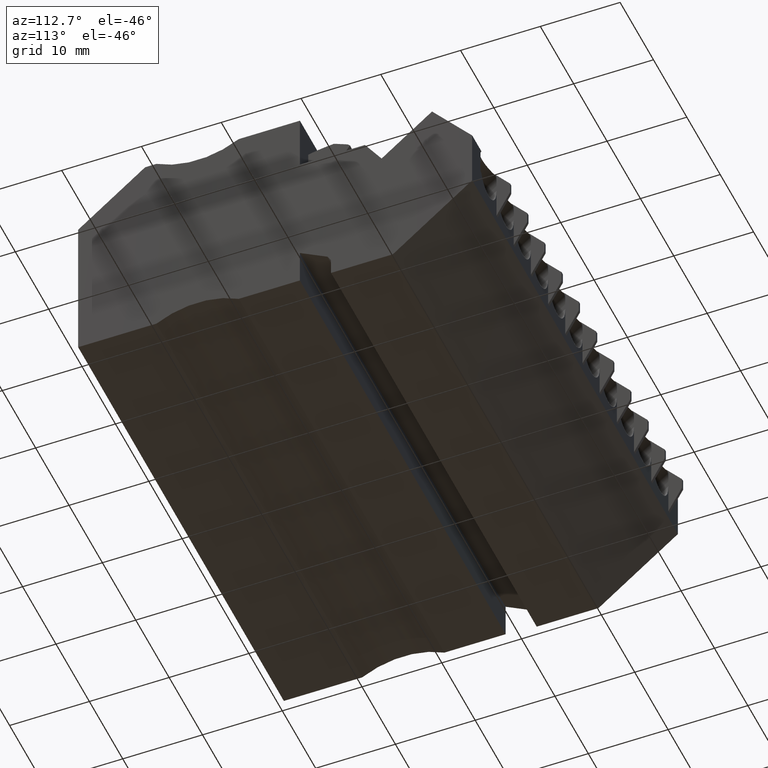
[diagram: clean part render]
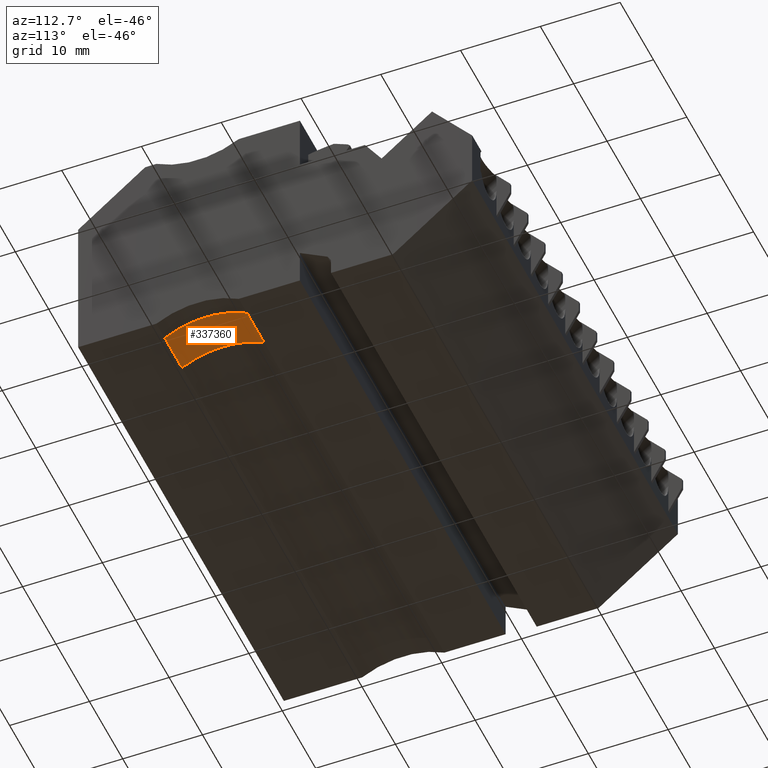
[diagram: same view with one face highlighted and labeled with its STEP entity id]
A machine part, auxiliary view. The second image highlights one B-rep face of the part: STEP entity #337360.
In plain terms, the highlighted cylindrical surface (partial cylindrical patch) has radius 10 mm, axis along (-1, -0, 0).
Its self-contained STEP definition (entity closure, byte-faithful):
#18730=CARTESIAN_POINT('',(430.260883772267,670.934347639395,
93.8699999926897));
#18740=DIRECTION('',(1.66699210889915E-10,4.90742846146349E-10,1.));
#18750=VECTOR('',#18740,1.);
#18760=LINE('',#18730,#18750);
#155850=CARTESIAN_POINT('',(440.590572493105,670.934347727425,
284.419999991964));
#155860=DIRECTION('',(-1.66699262872186E-10,-4.90742678260922E-10,-1.));
#155870=VECTOR('',#155860,1.);
#155880=LINE('',#155850,#155870);
#180170=CARTESIAN_POINT('',(440.590572465633,670.934347645425,
119.619999998792));
#180180=VERTEX_POINT('',#180170);
#271630=CARTESIAN_POINT('',(430.260883759973,670.934347657868,
119.619999999611));
#271640=VERTEX_POINT('',#271630);
#337070=CARTESIAN_POINT('',(435.425728112936,662.371381971997,
284.419999997027));
#337080=DIRECTION('',(-1.66699262872186E-10,-4.90742678260922E-10,-1.));
#337090=DIRECTION('',(1.,-1.20456367103123E-9,-1.66698994956591E-10));
#337100=AXIS2_PLACEMENT_3D('',#337070,#337080,#337090);
#337110=CYLINDRICAL_SURFACE('',#337100,10.);
#337120=CARTESIAN_POINT('',(430.260883757559,670.934347680084,
124.769999991298));
#337130=VERTEX_POINT('',#337120);
#337140=EDGE_CURVE('',#271640,#337130,#18760,.T.);
#337150=ORIENTED_EDGE('',*,*,#337140,.F.);
#337160=CARTESIAN_POINT('',(435.425728086323,662.37138189365,
124.76999999464));
#337170=DIRECTION('',(1.66699262872186E-10,4.90742678260922E-10,1.));
#337180=DIRECTION('',(1.,-1.20456372654239E-9,-1.66699262281055E-10));
#337190=AXIS2_PLACEMENT_3D('',#337160,#337170,#337180);
#337200=CIRCLE('',#337190,10.);
#337210=CARTESIAN_POINT('',(440.590572465861,670.934347648423,
124.769999989576));
#337220=VERTEX_POINT('',#337210);
#337230=EDGE_CURVE('',#337220,#337130,#337200,.T.);
#337240=ORIENTED_EDGE('',*,*,#337230,.T.);
#337250=EDGE_CURVE('',#337220,#180180,#155880,.T.);
#337260=ORIENTED_EDGE('',*,*,#337250,.F.);
#337270=CARTESIAN_POINT('',(435.425728085464,662.371381891123,
119.620000004214));
#337280=DIRECTION('',(1.66699262872186E-10,4.90742678260922E-10,1.));
#337290=DIRECTION('',(1.,-1.20456367103123E-9,-1.66698994956591E-10));
#337300=AXIS2_PLACEMENT_3D('',#337270,#337280,#337290);
#337310=CIRCLE('',#337300,10.);
#337320=EDGE_CURVE('',#180180,#271640,#337310,.T.);
#337330=ORIENTED_EDGE('',*,*,#337320,.F.);
#337340=EDGE_LOOP('',(#337330,#337260,#337240,#337150));
#337350=FACE_OUTER_BOUND('',#337340,.T.);
#337360=ADVANCED_FACE('',(#337350),#337110,.F.);